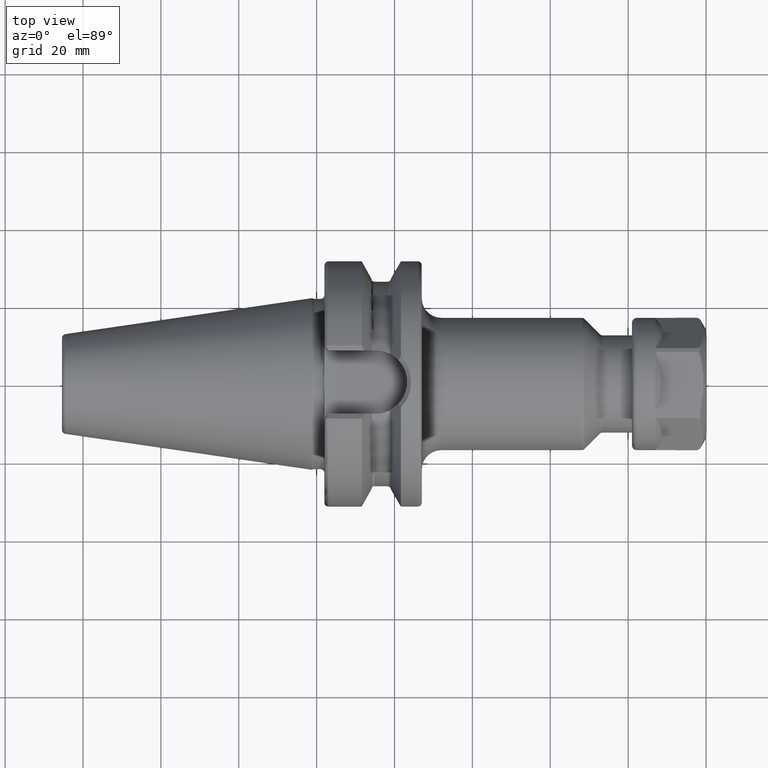
[diagram: clean part render]
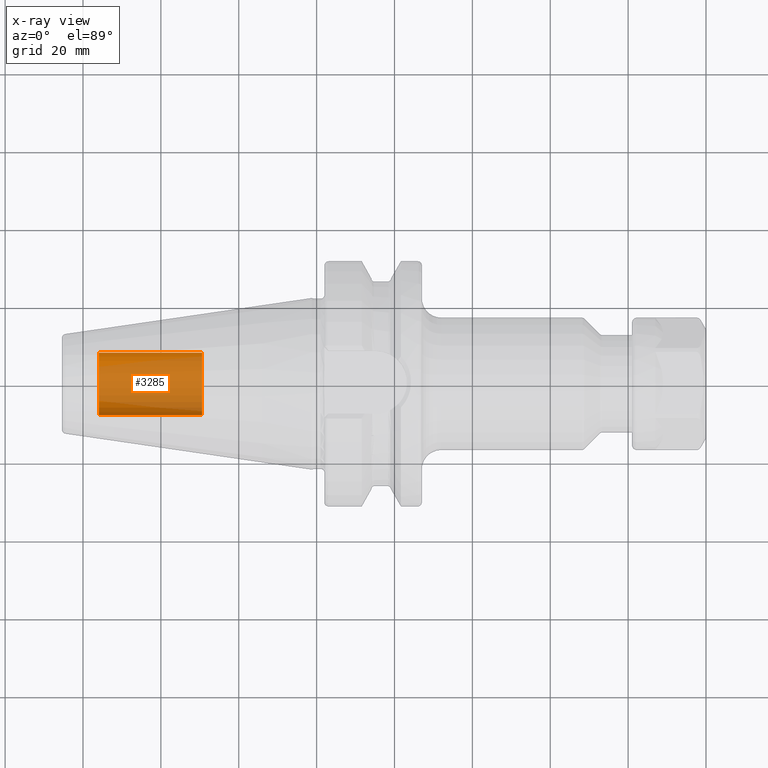
[diagram: x-ray — body ghosted, one internal face saturated and labeled with its STEP entity id]
A machine part, top view, then the same camera in x-ray: the body is ghosted and one INTERNAL B-rep face — a face not visible from any outside direction — is saturated and labeled: STEP entity #3285.
In plain terms, the highlighted cylindrical surface (edge-blend (fillet) strip) has radius 8.0028 mm, axis along (1, 0, 0).
Its self-contained STEP definition (entity closure, byte-faithful):
#3220=CARTESIAN_POINT('',(-5.595E1,0.E0,0.E0));
#3221=DIRECTION('',(-1.E0,0.E0,0.E0));
#3222=DIRECTION('',(0.E0,1.E0,0.E0));
#3223=AXIS2_PLACEMENT_3D('',#3220,#3221,#3222);
#3225=DIRECTION('',(1.E0,0.E0,0.E0));
#3226=VECTOR('',#3225,2.655E1);
#3227=CARTESIAN_POINT('',(-5.595E1,-8.00275E0,0.E0));
#3228=LINE('',#3227,#3226);
#3234=DIRECTION('',(1.E0,0.E0,0.E0));
#3235=VECTOR('',#3234,2.655E1);
#3236=CARTESIAN_POINT('',(-5.595E1,8.00275E0,0.E0));
#3237=LINE('',#3236,#3235);
#3243=CARTESIAN_POINT('',(-2.94E1,0.E0,0.E0));
#3244=DIRECTION('',(1.E0,0.E0,0.E0));
#3245=DIRECTION('',(0.E0,-1.E0,0.E0));
#3246=AXIS2_PLACEMENT_3D('',#3243,#3244,#3245);
#3258=CARTESIAN_POINT('',(-5.595E1,8.00275E0,0.E0));
#3259=CARTESIAN_POINT('',(-5.595E1,-8.00275E0,0.E0));
#3260=VERTEX_POINT('',#3258);
#3261=VERTEX_POINT('',#3259);
#3262=CARTESIAN_POINT('',(-2.94E1,8.00275E0,0.E0));
#3263=CARTESIAN_POINT('',(-2.94E1,-8.00275E0,0.E0));
#3264=VERTEX_POINT('',#3262);
#3265=VERTEX_POINT('',#3263);
#3270=CARTESIAN_POINT('',(-5.595E1,0.E0,0.E0));
#3271=DIRECTION('',(1.E0,0.E0,0.E0));
#3272=DIRECTION('',(0.E0,1.E0,0.E0));
#3273=AXIS2_PLACEMENT_3D('',#3270,#3271,#3272);
#3274=CYLINDRICAL_SURFACE('',#3273,8.00275E0);
#3276=ORIENTED_EDGE('',*,*,#3275,.T.);
#3278=ORIENTED_EDGE('',*,*,#3277,.T.);
#3280=ORIENTED_EDGE('',*,*,#3279,.T.);
#3282=ORIENTED_EDGE('',*,*,#3281,.F.);
#3283=EDGE_LOOP('',(#3276,#3278,#3280,#3282));
#3284=FACE_OUTER_BOUND('',#3283,.F.);
#3285=ADVANCED_FACE('',(#3284),#3274,.T.);
#3224=CIRCLE('',#3223,8.00275E0);
#3247=CIRCLE('',#3246,8.00275E0);
#3275=EDGE_CURVE('',#3260,#3261,#3224,.T.);
#3277=EDGE_CURVE('',#3261,#3265,#3228,.T.);
#3279=EDGE_CURVE('',#3265,#3264,#3247,.T.);
#3281=EDGE_CURVE('',#3260,#3264,#3237,.T.);